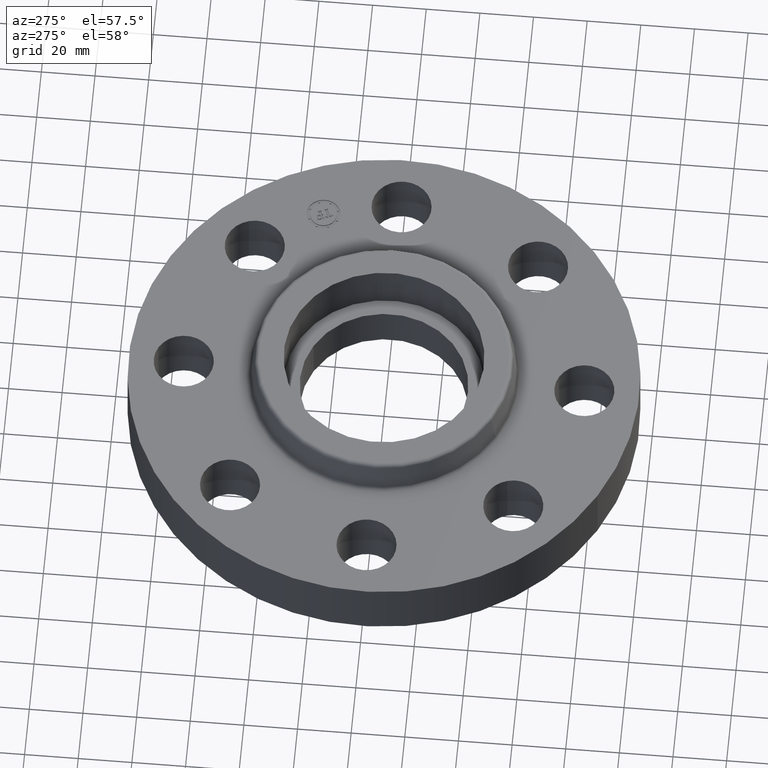
[diagram: clean part render]
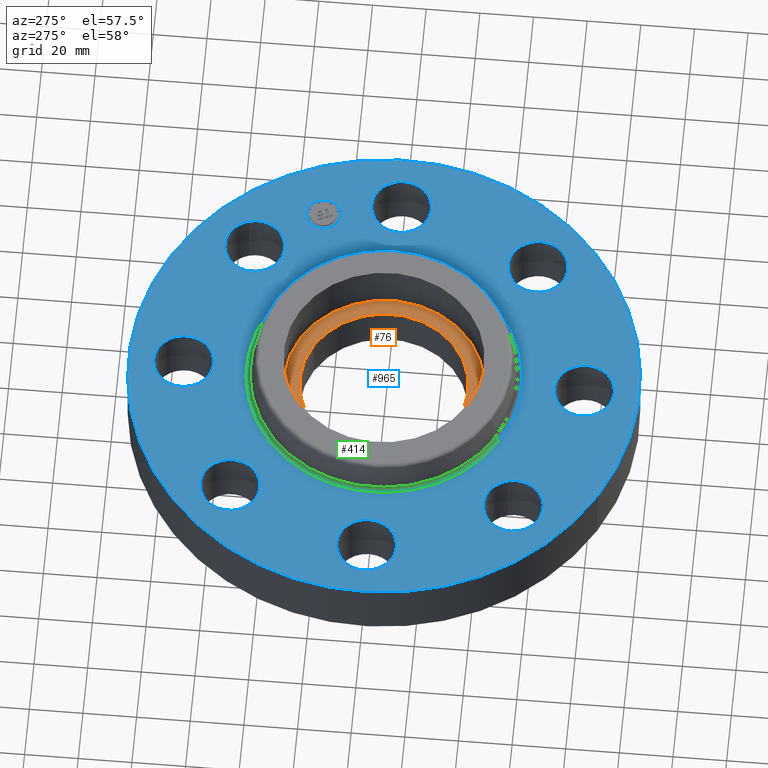
[diagram: same view with three faces highlighted in distinct colors, each labeled with its STEP entity id]
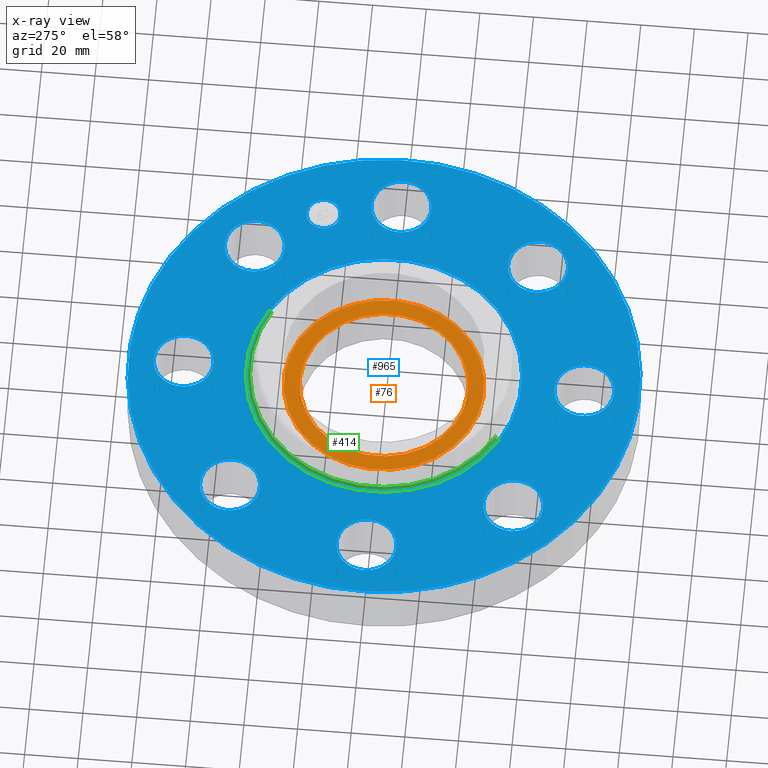
[diagram: x-ray of the same camera — body ghosted, the three highlighted faces saturated]
A machine part, auxiliary view with three faces highlighted in distinct colors.
The next image is the same camera in x-ray (body ghosted, the three faces saturated) — at least one of them is partly hidden behind the body in this view.
Their STEP definitions:

[orange] entity #76 — the highlighted planar face has unit normal (0, 0, -1).
#38=AXIS2_PLACEMENT_3D('Plane Axis2P3D',#35,#36,#37) ;
#42=AXIS2_PLACEMENT_3D('Circle Axis2P3D',#40,#41,$) ;
#51=AXIS2_PLACEMENT_3D('Circle Axis2P3D',#49,#50,$) ;
#60=AXIS2_PLACEMENT_3D('Circle Axis2P3D',#58,#59,$) ;
#69=AXIS2_PLACEMENT_3D('Circle Axis2P3D',#67,#68,$) ;
#35=CARTESIAN_POINT('Axis2P3D Location',(0.,-6.99353086378E-017,0.690000000003)) ;
#40=CARTESIAN_POINT('Axis2P3D Location',(0.,-6.99353086378E-017,0.690000000003)) ;
#44=CARTESIAN_POINT('Vertex',(-1.29004636598,0.704755541751,0.690000000003)) ;
#46=CARTESIAN_POINT('Vertex',(1.29004636598,-0.704755541751,0.690000000003)) ;
#49=CARTESIAN_POINT('Axis2P3D Location',(0.,-6.99353086378E-017,0.690000000003)) ;
#58=CARTESIAN_POINT('Axis2P3D Location',(-1.39870617276E-016,-3.49676543189E-017,0.690000000003)) ;
#62=CARTESIAN_POINT('Vertex',(-0.591850827409,-1.08337567266,0.690000000003)) ;
#64=CARTESIAN_POINT('Vertex',(0.591850827409,1.08337567266,0.690000000003)) ;
#67=CARTESIAN_POINT('Axis2P3D Location',(4.19611851827E-016,3.49676543189E-017,0.690000000003)) ;
#36=DIRECTION('Axis2P3D Direction',(0.,0.,-0.0393700787402)) ;
#37=DIRECTION('Axis2P3D XDirection',(0.0393700787402,0.,0.)) ;
#41=DIRECTION('Axis2P3D Direction',(0.,0.,-0.0393700787402)) ;
#50=DIRECTION('Axis2P3D Direction',(0.,0.,-0.0393700787402)) ;
#59=DIRECTION('Axis2P3D Direction',(0.,0.,-0.0393700787402)) ;
#68=DIRECTION('Axis2P3D Direction',(0.,0.,-0.0393700787402)) ;
#55=ORIENTED_EDGE('',*,*,#48,.F.) ;
#56=ORIENTED_EDGE('',*,*,#53,.F.) ;
#73=ORIENTED_EDGE('',*,*,#66,.T.) ;
#74=ORIENTED_EDGE('',*,*,#71,.T.) ;
#75=FACE_BOUND('',#72,.T.) ;
#76=ADVANCED_FACE('PartBody',(#57,#75),#39,.F.) ;
#43=CIRCLE('generated circle',#42,1.47000000001) ;
#52=CIRCLE('generated circle',#51,1.47000000001) ;
#61=CIRCLE('generated circle',#60,1.2345) ;
#70=CIRCLE('generated circle',#69,1.2345) ;
#48=EDGE_CURVE('',#45,#47,#43,.T.) ;
#53=EDGE_CURVE('',#47,#45,#52,.T.) ;
#66=EDGE_CURVE('',#63,#65,#61,.T.) ;
#71=EDGE_CURVE('',#65,#63,#70,.T.) ;
#54=EDGE_LOOP('',(#55,#56)) ;
#72=EDGE_LOOP('',(#73,#74)) ;
#57=FACE_OUTER_BOUND('',#54,.T.) ;
#39=PLANE('',#38) ;
#45=VERTEX_POINT('',#44) ;
#47=VERTEX_POINT('',#46) ;
#63=VERTEX_POINT('',#62) ;
#65=VERTEX_POINT('',#64) ;

[blue] entity #965 — the highlighted planar face has unit normal (0, 0, -1).
#329=AXIS2_PLACEMENT_3D('Circle Axis2P3D',#327,#328,$) ;
#348=AXIS2_PLACEMENT_3D('Circle Axis2P3D',#346,#347,$) ;
#365=AXIS2_PLACEMENT_3D('Circle Axis2P3D',#363,#364,$) ;
#400=AXIS2_PLACEMENT_3D('Circle Axis2P3D',#398,#399,$) ;
#550=AXIS2_PLACEMENT_3D('Circle Axis2P3D',#548,#549,$) ;
#562=AXIS2_PLACEMENT_3D('Circle Axis2P3D',#560,#561,$) ;
#593=AXIS2_PLACEMENT_3D('Circle Axis2P3D',#591,#592,$) ;
#605=AXIS2_PLACEMENT_3D('Circle Axis2P3D',#603,#604,$) ;
#636=AXIS2_PLACEMENT_3D('Circle Axis2P3D',#634,#635,$) ;
#648=AXIS2_PLACEMENT_3D('Circle Axis2P3D',#646,#647,$) ;
#679=AXIS2_PLACEMENT_3D('Circle Axis2P3D',#677,#678,$) ;
#691=AXIS2_PLACEMENT_3D('Circle Axis2P3D',#689,#690,$) ;
#722=AXIS2_PLACEMENT_3D('Circle Axis2P3D',#720,#721,$) ;
#734=AXIS2_PLACEMENT_3D('Circle Axis2P3D',#732,#733,$) ;
#765=AXIS2_PLACEMENT_3D('Circle Axis2P3D',#763,#764,$) ;
#777=AXIS2_PLACEMENT_3D('Circle Axis2P3D',#775,#776,$) ;
#808=AXIS2_PLACEMENT_3D('Circle Axis2P3D',#806,#807,$) ;
#820=AXIS2_PLACEMENT_3D('Circle Axis2P3D',#818,#819,$) ;
#851=AXIS2_PLACEMENT_3D('Circle Axis2P3D',#849,#850,$) ;
#863=AXIS2_PLACEMENT_3D('Circle Axis2P3D',#861,#862,$) ;
#905=AXIS2_PLACEMENT_3D('Plane Axis2P3D',#902,#903,#904) ;
#949=AXIS2_PLACEMENT_3D('Circle Axis2P3D',#947,#948,$) ;
#958=AXIS2_PLACEMENT_3D('Circle Axis2P3D',#956,#957,$) ;
#324=CARTESIAN_POINT('Vertex',(-1.79784576977,-3.2909346071,0.940000000004)) ;
#327=CARTESIAN_POINT('Axis2P3D Location',(0.,0.,0.940000000004)) ;
#331=CARTESIAN_POINT('Vertex',(1.79784576977,3.2909346071,0.940000000004)) ;
#346=CARTESIAN_POINT('Axis2P3D Location',(0.,0.,0.940000000004)) ;
#363=CARTESIAN_POINT('Axis2P3D Location',(0.,0.,0.940000000004)) ;
#367=CARTESIAN_POINT('Vertex',(0.968605458611,1.77302039917,0.940000000004)) ;
#369=CARTESIAN_POINT('Vertex',(-0.968605458611,-1.77302039917,0.940000000004)) ;
#398=CARTESIAN_POINT('Axis2P3D Location',(0.,0.,0.940000000004)) ;
#538=CARTESIAN_POINT('Vertex',(2.50109577389,2.2027713304,0.940000000004)) ;
#545=CARTESIAN_POINT('Vertex',(1.6566920995,1.95501654299,0.940000000004)) ;
#548=CARTESIAN_POINT('Axis2P3D Location',(2.0788939367,2.0788939367,0.940000000004)) ;
#560=CARTESIAN_POINT('Axis2P3D Location',(2.0788939367,2.0788939367,0.940000000004)) ;
#581=CARTESIAN_POINT('Vertex',(0.210947236987,3.32613632725,0.940000000004)) ;
#588=CARTESIAN_POINT('Vertex',(-0.210947236987,2.55386367278,0.940000000004)) ;
#591=CARTESIAN_POINT('Axis2P3D Location',(-5.40069238426E-016,2.94000000001,0.940000000004)) ;
#603=CARTESIAN_POINT('Axis2P3D Location',(-5.40069238426E-016,2.94000000001,0.940000000004)) ;
#624=CARTESIAN_POINT('Vertex',(-2.2027713304,2.50109577389,0.940000000004)) ;
#631=CARTESIAN_POINT('Vertex',(-1.95501654299,1.6566920995,0.940000000004)) ;
#634=CARTESIAN_POINT('Axis2P3D Location',(-2.0788939367,2.0788939367,0.940000000004)) ;
#646=CARTESIAN_POINT('Axis2P3D Location',(-2.0788939367,2.0788939367,0.940000000004)) ;
#667=CARTESIAN_POINT('Vertex',(-3.32613632725,0.210947236987,0.940000000004)) ;
#674=CARTESIAN_POINT('Vertex',(-2.55386367278,-0.210947236987,0.940000000004)) ;
#677=CARTESIAN_POINT('Axis2P3D Location',(-2.94000000001,-3.60046158951E-016,0.940000000004)) ;
#689=CARTESIAN_POINT('Axis2P3D Location',(-2.94000000001,-3.60046158951E-016,0.940000000004)) ;
#710=CARTESIAN_POINT('Vertex',(-2.50109577389,-2.2027713304,0.940000000004)) ;
#717=CARTESIAN_POINT('Vertex',(-1.6566920995,-1.95501654299,0.940000000004)) ;
#720=CARTESIAN_POINT('Axis2P3D Location',(-2.0788939367,-2.0788939367,0.940000000004)) ;
#732=CARTESIAN_POINT('Axis2P3D Location',(-2.0788939367,-2.0788939367,0.940000000004)) ;
#753=CARTESIAN_POINT('Vertex',(-0.210947236987,-3.32613632725,0.940000000004)) ;
#760=CARTESIAN_POINT('Vertex',(0.210947236987,-2.55386367278,0.940000000004)) ;
#763=CARTESIAN_POINT('Axis2P3D Location',(-3.79459389627E-016,-2.94000000001,0.940000000004)) ;
#775=CARTESIAN_POINT('Axis2P3D Location',(-3.79459389627E-016,-2.94000000001,0.940000000004)) ;
#796=CARTESIAN_POINT('Vertex',(2.2027713304,-2.50109577389,0.940000000004)) ;
#803=CARTESIAN_POINT('Vertex',(1.95501654299,-1.6566920995,0.940000000004)) ;
#806=CARTESIAN_POINT('Axis2P3D Location',(2.0788939367,-2.0788939367,0.940000000004)) ;
#818=CARTESIAN_POINT('Axis2P3D Location',(2.0788939367,-2.0788939367,0.940000000004)) ;
#839=CARTESIAN_POINT('Vertex',(2.55386367278,0.210947236987,0.940000000004)) ;
#846=CARTESIAN_POINT('Vertex',(3.32613632725,-0.210947236987,0.940000000004)) ;
#849=CARTESIAN_POINT('Axis2P3D Location',(2.94000000001,0.,0.940000000004)) ;
#861=CARTESIAN_POINT('Axis2P3D Location',(2.94000000001,0.,0.940000000004)) ;
#902=CARTESIAN_POINT('Axis2P3D Location',(0.,3.75000000002,0.940000000004)) ;
#947=CARTESIAN_POINT('Axis2P3D Location',(2.71620582559,1.12508929116,0.940000000004)) ;
#951=CARTESIAN_POINT('Vertex',(2.62149167608,1.35374947546,0.940000000004)) ;
#953=CARTESIAN_POINT('Vertex',(2.8109199751,0.89642910686,0.940000000004)) ;
#956=CARTESIAN_POINT('Axis2P3D Location',(2.71620582559,1.12508929116,0.940000000004)) ;
#328=DIRECTION('Axis2P3D Direction',(0.,0.,-0.0393700787402)) ;
#347=DIRECTION('Axis2P3D Direction',(0.,0.,-0.0393700787402)) ;
#364=DIRECTION('Axis2P3D Direction',(0.,0.,-0.0393700787402)) ;
#399=DIRECTION('Axis2P3D Direction',(0.,0.,-0.0393700787402)) ;
#549=DIRECTION('Axis2P3D Direction',(0.,0.,-0.0393700787402)) ;
#561=DIRECTION('Axis2P3D Direction',(0.,0.,-0.0393700787402)) ;
#592=DIRECTION('Axis2P3D Direction',(0.,0.,-0.0393700787402)) ;
#604=DIRECTION('Axis2P3D Direction',(0.,0.,-0.0393700787402)) ;
#635=DIRECTION('Axis2P3D Direction',(0.,0.,-0.0393700787402)) ;
#647=DIRECTION('Axis2P3D Direction',(0.,0.,-0.0393700787402)) ;
#678=DIRECTION('Axis2P3D Direction',(-0.,0.,-0.0393700787402)) ;
#690=DIRECTION('Axis2P3D Direction',(-0.,0.,-0.0393700787402)) ;
#721=DIRECTION('Axis2P3D Direction',(-0.,0.,-0.0393700787402)) ;
#733=DIRECTION('Axis2P3D Direction',(-0.,0.,-0.0393700787402)) ;
#764=DIRECTION('Axis2P3D Direction',(0.,-0.,-0.0393700787402)) ;
#776=DIRECTION('Axis2P3D Direction',(0.,-0.,-0.0393700787402)) ;
#807=DIRECTION('Axis2P3D Direction',(0.,-0.,-0.0393700787402)) ;
#819=DIRECTION('Axis2P3D Direction',(0.,-0.,-0.0393700787402)) ;
#850=DIRECTION('Axis2P3D Direction',(0.,-0.,-0.0393700787402)) ;
#862=DIRECTION('Axis2P3D Direction',(0.,-0.,-0.0393700787402)) ;
#903=DIRECTION('Axis2P3D Direction',(0.,0.,-0.0393700787402)) ;
#904=DIRECTION('Axis2P3D XDirection',(0.0393700787402,0.,0.)) ;
#948=DIRECTION('Axis2P3D Direction',(0.,0.,-0.0393700787402)) ;
#957=DIRECTION('Axis2P3D Direction',(0.,0.,-0.0393700787402)) ;
#908=ORIENTED_EDGE('',*,*,#350,.F.) ;
#909=ORIENTED_EDGE('',*,*,#333,.F.) ;
#912=ORIENTED_EDGE('',*,*,#853,.T.) ;
#913=ORIENTED_EDGE('',*,*,#865,.T.) ;
#916=ORIENTED_EDGE('',*,*,#402,.T.) ;
#917=ORIENTED_EDGE('',*,*,#371,.T.) ;
#920=ORIENTED_EDGE('',*,*,#810,.T.) ;
#921=ORIENTED_EDGE('',*,*,#822,.T.) ;
#924=ORIENTED_EDGE('',*,*,#767,.T.) ;
#925=ORIENTED_EDGE('',*,*,#779,.T.) ;
#928=ORIENTED_EDGE('',*,*,#724,.T.) ;
#929=ORIENTED_EDGE('',*,*,#736,.T.) ;
#932=ORIENTED_EDGE('',*,*,#681,.T.) ;
#933=ORIENTED_EDGE('',*,*,#693,.T.) ;
#936=ORIENTED_EDGE('',*,*,#638,.T.) ;
#937=ORIENTED_EDGE('',*,*,#650,.T.) ;
#940=ORIENTED_EDGE('',*,*,#595,.T.) ;
#941=ORIENTED_EDGE('',*,*,#607,.T.) ;
#944=ORIENTED_EDGE('',*,*,#552,.T.) ;
#945=ORIENTED_EDGE('',*,*,#564,.T.) ;
#962=ORIENTED_EDGE('',*,*,#955,.T.) ;
#963=ORIENTED_EDGE('',*,*,#960,.T.) ;
#914=FACE_BOUND('',#911,.T.) ;
#918=FACE_BOUND('',#915,.T.) ;
#922=FACE_BOUND('',#919,.T.) ;
#926=FACE_BOUND('',#923,.T.) ;
#930=FACE_BOUND('',#927,.T.) ;
#934=FACE_BOUND('',#931,.T.) ;
#938=FACE_BOUND('',#935,.T.) ;
#942=FACE_BOUND('',#939,.T.) ;
#946=FACE_BOUND('',#943,.T.) ;
#964=FACE_BOUND('',#961,.T.) ;
#965=ADVANCED_FACE('PartBody',(#910,#914,#918,#922,#926,#930,#934,#938,#942,#946,#964),#906,.F.) ;
#330=CIRCLE('generated circle',#329,3.75000000002) ;
#349=CIRCLE('generated circle',#348,3.75000000002) ;
#366=CIRCLE('generated circle',#365,2.02034597788) ;
#401=CIRCLE('generated circle',#400,2.02034597788) ;
#551=CIRCLE('generated circle',#550,0.440000000002) ;
#563=CIRCLE('generated circle',#562,0.440000000002) ;
#594=CIRCLE('generated circle',#593,0.440000000002) ;
#606=CIRCLE('generated circle',#605,0.440000000002) ;
#637=CIRCLE('generated circle',#636,0.440000000002) ;
#649=CIRCLE('generated circle',#648,0.440000000002) ;
#680=CIRCLE('generated circle',#679,0.440000000002) ;
#692=CIRCLE('generated circle',#691,0.440000000002) ;
#723=CIRCLE('generated circle',#722,0.440000000002) ;
#735=CIRCLE('generated circle',#734,0.440000000002) ;
#766=CIRCLE('generated circle',#765,0.440000000002) ;
#778=CIRCLE('generated circle',#777,0.440000000002) ;
#809=CIRCLE('generated circle',#808,0.440000000002) ;
#821=CIRCLE('generated circle',#820,0.440000000002) ;
#852=CIRCLE('generated circle',#851,0.440000000002) ;
#864=CIRCLE('generated circle',#863,0.440000000002) ;
#950=CIRCLE('generated circle',#949,0.247500000001) ;
#959=CIRCLE('generated circle',#958,0.247500000001) ;
#333=EDGE_CURVE('',#325,#332,#330,.T.) ;
#350=EDGE_CURVE('',#332,#325,#349,.T.) ;
#371=EDGE_CURVE('',#368,#370,#366,.T.) ;
#402=EDGE_CURVE('',#370,#368,#401,.T.) ;
#552=EDGE_CURVE('',#539,#546,#551,.T.) ;
#564=EDGE_CURVE('',#546,#539,#563,.T.) ;
#595=EDGE_CURVE('',#582,#589,#594,.T.) ;
#607=EDGE_CURVE('',#589,#582,#606,.T.) ;
#638=EDGE_CURVE('',#625,#632,#637,.T.) ;
#650=EDGE_CURVE('',#632,#625,#649,.T.) ;
#681=EDGE_CURVE('',#668,#675,#680,.T.) ;
#693=EDGE_CURVE('',#675,#668,#692,.T.) ;
#724=EDGE_CURVE('',#711,#718,#723,.T.) ;
#736=EDGE_CURVE('',#718,#711,#735,.T.) ;
#767=EDGE_CURVE('',#754,#761,#766,.T.) ;
#779=EDGE_CURVE('',#761,#754,#778,.T.) ;
#810=EDGE_CURVE('',#797,#804,#809,.T.) ;
#822=EDGE_CURVE('',#804,#797,#821,.T.) ;
#853=EDGE_CURVE('',#840,#847,#852,.T.) ;
#865=EDGE_CURVE('',#847,#840,#864,.T.) ;
#955=EDGE_CURVE('',#952,#954,#950,.T.) ;
#960=EDGE_CURVE('',#954,#952,#959,.T.) ;
#907=EDGE_LOOP('',(#908,#909)) ;
#911=EDGE_LOOP('',(#912,#913)) ;
#915=EDGE_LOOP('',(#916,#917)) ;
#919=EDGE_LOOP('',(#920,#921)) ;
#923=EDGE_LOOP('',(#924,#925)) ;
#927=EDGE_LOOP('',(#928,#929)) ;
#931=EDGE_LOOP('',(#932,#933)) ;
#935=EDGE_LOOP('',(#936,#937)) ;
#939=EDGE_LOOP('',(#940,#941)) ;
#943=EDGE_LOOP('',(#944,#945)) ;
#961=EDGE_LOOP('',(#962,#963)) ;
#910=FACE_OUTER_BOUND('',#907,.T.) ;
#906=PLANE('',#905) ;
#325=VERTEX_POINT('',#324) ;
#332=VERTEX_POINT('',#331) ;
#368=VERTEX_POINT('',#367) ;
#370=VERTEX_POINT('',#369) ;
#539=VERTEX_POINT('',#538) ;
#546=VERTEX_POINT('',#545) ;
#582=VERTEX_POINT('',#581) ;
#589=VERTEX_POINT('',#588) ;
#625=VERTEX_POINT('',#624) ;
#632=VERTEX_POINT('',#631) ;
#668=VERTEX_POINT('',#667) ;
#675=VERTEX_POINT('',#674) ;
#711=VERTEX_POINT('',#710) ;
#718=VERTEX_POINT('',#717) ;
#754=VERTEX_POINT('',#753) ;
#761=VERTEX_POINT('',#760) ;
#797=VERTEX_POINT('',#796) ;
#804=VERTEX_POINT('',#803) ;
#840=VERTEX_POINT('',#839) ;
#847=VERTEX_POINT('',#846) ;
#952=VERTEX_POINT('',#951) ;
#954=VERTEX_POINT('',#953) ;

[green] entity #414 — the highlighted toroidal blend (fillet) surface has major radius 51.3168 mm and minor (blend) radius 1.524 mm.
#361=AXIS2_PLACEMENT_3D('Torus Axis2P3D',#358,#359,#360) ;
#374=AXIS2_PLACEMENT_3D('Circle Axis2P3D',#372,#373,$) ;
#388=AXIS2_PLACEMENT_3D('Circle Axis2P3D',#386,#387,$) ;
#400=AXIS2_PLACEMENT_3D('Circle Axis2P3D',#398,#399,$) ;
#405=AXIS2_PLACEMENT_3D('Circle Axis2P3D',#403,#404,$) ;
#358=CARTESIAN_POINT('Axis2P3D Location',(0.,0.,1.)) ;
#367=CARTESIAN_POINT('Vertex',(0.968605458611,1.77302039917,0.940000000004)) ;
#369=CARTESIAN_POINT('Vertex',(-0.968605458611,-1.77302039917,0.940000000004)) ;
#372=CARTESIAN_POINT('Axis2P3D Location',(0.968605458611,1.77302039917,1.)) ;
#376=CARTESIAN_POINT('Vertex',(0.940276939367,1.72116539252,0.989581109344)) ;
#383=CARTESIAN_POINT('Vertex',(-0.940276939367,-1.72116539252,0.989581109344)) ;
#386=CARTESIAN_POINT('Axis2P3D Location',(-0.968605458611,-1.77302039917,1.)) ;
#398=CARTESIAN_POINT('Axis2P3D Location',(0.,0.,0.940000000004)) ;
#403=CARTESIAN_POINT('Axis2P3D Location',(0.,0.,0.989581109344)) ;
#359=DIRECTION('Axis2P3D Direction',(0.,0.,-0.0393700787402)) ;
#360=DIRECTION('Axis2P3D XDirection',(-0.0188750212049,-0.0345504945626,0.)) ;
#373=DIRECTION('Axis2P3D Direction',(-0.0345504945626,0.0188750212049,0.)) ;
#387=DIRECTION('Axis2P3D Direction',(0.0345504945626,-0.0188750212049,0.)) ;
#399=DIRECTION('Axis2P3D Direction',(0.,0.,-0.0393700787402)) ;
#404=DIRECTION('Axis2P3D Direction',(0.,0.,-0.0393700787402)) ;
#409=ORIENTED_EDGE('',*,*,#402,.F.) ;
#410=ORIENTED_EDGE('',*,*,#390,.T.) ;
#411=ORIENTED_EDGE('',*,*,#407,.T.) ;
#412=ORIENTED_EDGE('',*,*,#378,.F.) ;
#414=ADVANCED_FACE('PartBody',(#413),#362,.F.) ;
#375=CIRCLE('generated circle',#374,0.0600000000002) ;
#389=CIRCLE('generated circle',#388,0.0600000000002) ;
#401=CIRCLE('generated circle',#400,2.02034597788) ;
#406=CIRCLE('generated circle',#405,1.9612575127) ;
#362=TOROIDAL_SURFACE('homeo Torus',#361,2.02034597788,0.0600000000002) ;
#378=EDGE_CURVE('',#368,#377,#375,.T.) ;
#390=EDGE_CURVE('',#370,#384,#389,.T.) ;
#402=EDGE_CURVE('',#370,#368,#401,.T.) ;
#407=EDGE_CURVE('',#384,#377,#406,.T.) ;
#408=EDGE_LOOP('',(#409,#410,#411,#412)) ;
#413=FACE_OUTER_BOUND('',#408,.T.) ;
#368=VERTEX_POINT('',#367) ;
#370=VERTEX_POINT('',#369) ;
#377=VERTEX_POINT('',#376) ;
#384=VERTEX_POINT('',#383) ;